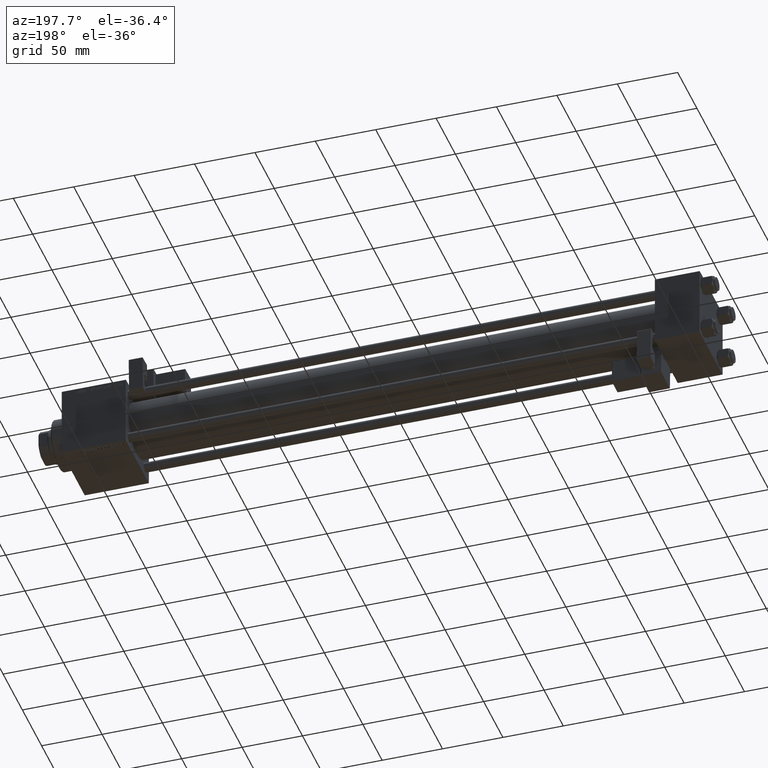
[diagram: clean part render]
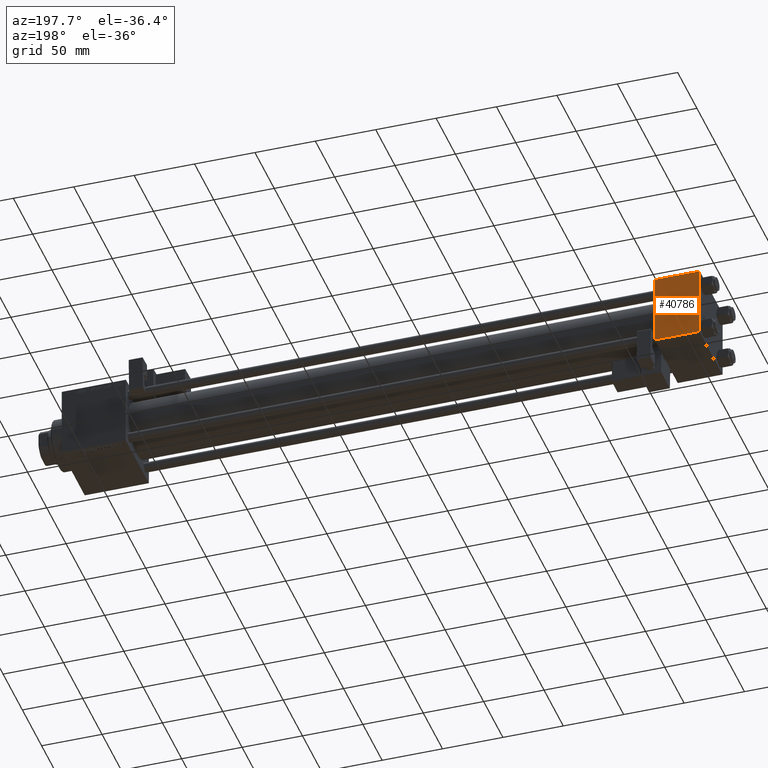
[diagram: same view with one face highlighted and labeled with its STEP entity id]
A machine part, auxiliary view. The second image highlights one B-rep face of the part: STEP entity #40786.
In plain terms, the highlighted planar face has unit normal (0, 1, 0).
Its self-contained STEP definition (entity closure, byte-faithful):
#1136 = CARTESIAN_POINT ( 'NONE',  ( 37.00000000000000000, 29.99999999999999289, 29.50000000000000000 ) ) ;
#2443 = VERTEX_POINT ( 'NONE', #36716 ) ;
#2735 = EDGE_CURVE ( 'NONE', #27718, #6239, #38272, .T. ) ;
#3836 = ORIENTED_EDGE ( 'NONE', *, *, #50773, .F. ) ;
#5464 = DIRECTION ( 'NONE',  ( 1.000000000000000000, 0.000000000000000000, 0.000000000000000000 ) ) ;
#5668 = AXIS2_PLACEMENT_3D ( 'NONE', #25770, #13312, #22230 ) ;
#6239 = VERTEX_POINT ( 'NONE', #6954 ) ;
#6954 = CARTESIAN_POINT ( 'NONE',  ( 37.00000000000000000, 29.99999999999999289, 29.50000000000000000 ) ) ;
#7122 = VECTOR ( 'NONE', #20307, 1000.000000000000000 ) ;
#7589 = LINE ( 'NONE', #16971, #7122 ) ;
#8197 = EDGE_CURVE ( 'NONE', #2443, #17661, #36178, .T. ) ;
#8597 = EDGE_LOOP ( 'NONE', ( #17643, #32527, #3836, #16016 ) ) ;
#11786 = DIRECTION ( 'NONE',  ( -1.000000000000000000, 0.000000000000000000, 0.000000000000000000 ) ) ;
#12981 = VECTOR ( 'NONE', #11786, 1000.000000000000000 ) ;
#13312 = DIRECTION ( 'NONE',  ( -0.000000000000000000, 1.000000000000000000, 0.000000000000000000 ) ) ;
#13473 = LINE ( 'NONE', #30012, #39448 ) ;
#16016 = ORIENTED_EDGE ( 'NONE', *, *, #2735, .T. ) ;
#16971 = CARTESIAN_POINT ( 'NONE',  ( 37.00000000000000000, 29.99999999999999289, 30.00000000000000000 ) ) ;
#17643 = ORIENTED_EDGE ( 'NONE', *, *, #32028, .T. ) ;
#17661 = VERTEX_POINT ( 'NONE', #52871 ) ;
#20307 = DIRECTION ( 'NONE',  ( 0.000000000000000000, 0.000000000000000000, -1.000000000000000000 ) ) ;
#22230 = DIRECTION ( 'NONE',  ( 0.000000000000000000, -0.000000000000000000, 1.000000000000000000 ) ) ;
#25770 = CARTESIAN_POINT ( 'NONE',  ( 37.00000000000000000, 29.99999999999999289, 30.00000000000000000 ) ) ;
#26813 = CARTESIAN_POINT ( 'NONE',  ( 0.000000000000000000, 29.99999999999999289, 29.50000000000000000 ) ) ;
#27718 = VERTEX_POINT ( 'NONE', #26813 ) ;
#30012 = CARTESIAN_POINT ( 'NONE',  ( 0.000000000000000000, 29.99999999999999289, 30.00000000000000000 ) ) ;
#30644 = PLANE ( 'NONE',  #5668 ) ;
#32028 = EDGE_CURVE ( 'NONE', #6239, #2443, #7589, .T. ) ;
#32527 = ORIENTED_EDGE ( 'NONE', *, *, #8197, .T. ) ;
#36178 = LINE ( 'NONE', #52684, #12981 ) ;
#36716 = CARTESIAN_POINT ( 'NONE',  ( 37.00000000000000000, 29.99999999999999289, -29.50000000000000000 ) ) ;
#36993 = VECTOR ( 'NONE', #5464, 1000.000000000000000 ) ;
#38272 = LINE ( 'NONE', #1136, #36993 ) ;
#38511 = FACE_OUTER_BOUND ( 'NONE', #8597, .T. ) ;
#39448 = VECTOR ( 'NONE', #47573, 1000.000000000000000 ) ;
#40786 = ADVANCED_FACE ( 'NONE', ( #38511 ), #30644, .T. ) ;
#47573 = DIRECTION ( 'NONE',  ( 0.000000000000000000, 0.000000000000000000, -1.000000000000000000 ) ) ;
#50773 = EDGE_CURVE ( 'NONE', #27718, #17661, #13473, .T. ) ;
#52684 = CARTESIAN_POINT ( 'NONE',  ( 37.00000000000000000, 29.99999999999999289, -29.50000000000000000 ) ) ;
#52871 = CARTESIAN_POINT ( 'NONE',  ( 0.000000000000000000, 29.99999999999999289, -29.50000000000000000 ) ) ;